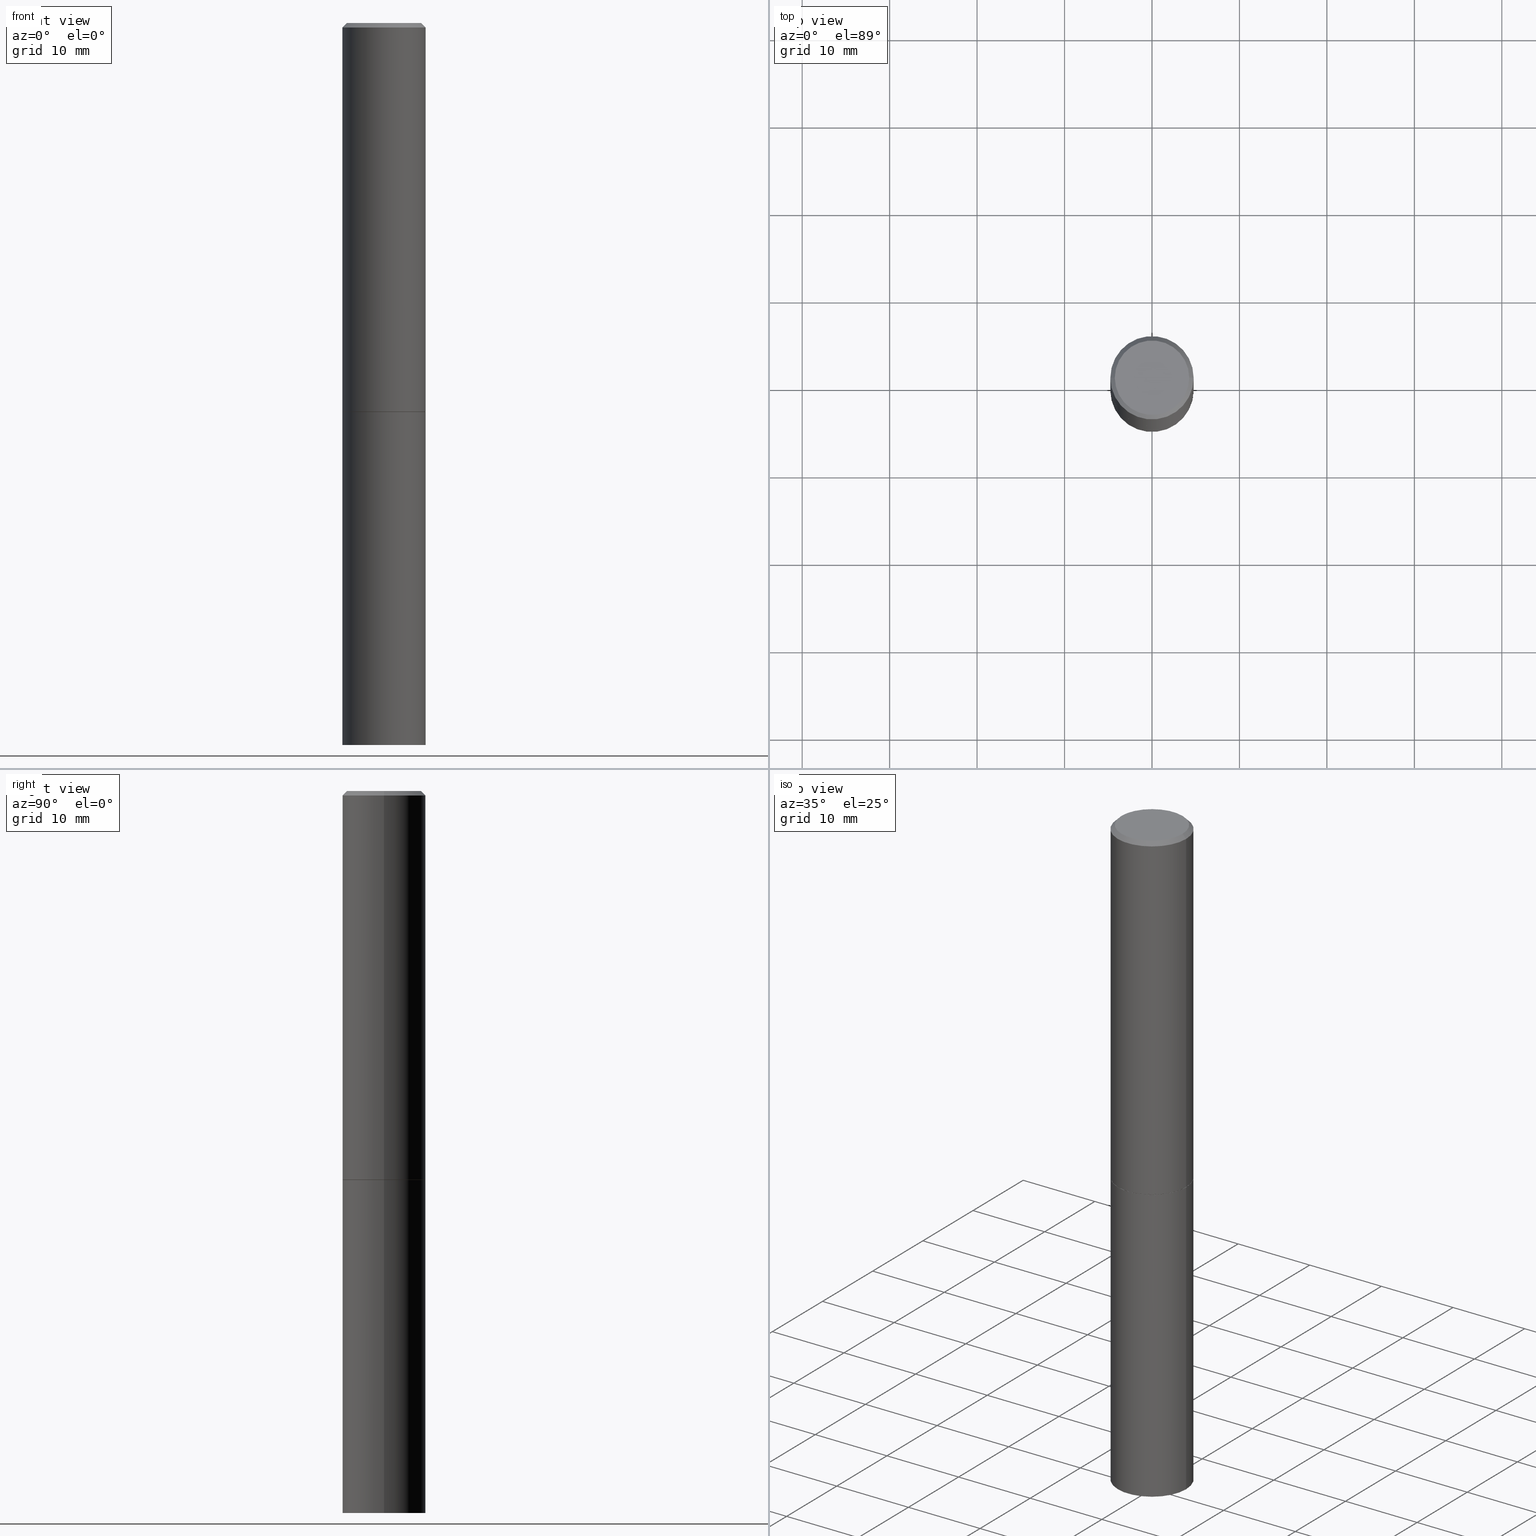
[diagram: canonical four-view strip — front | top / right | iso, engineering-drawing reading convention]
A machine part, canonical four-view strip (front | top / right | iso — engineering-drawing reading convention). The complete STEP part file that produces these views, byte-faithful:
ISO-10303-21;
HEADER;
FILE_DESCRIPTION (( 'STEP AP203' ),
    '1' );
FILE_NAME ('34512.STEP',
    '2024-02-27T16:03:57',
    ( '' ),
    ( '' ),
    'SwSTEP 2.0',
    'SolidWorks 2023',
    '' );
FILE_SCHEMA (( 'CONFIG_CONTROL_DESIGN' ));
ENDSEC;

DATA;
#1 = COORDINATED_UNIVERSAL_TIME_OFFSET ( 5, 0, .BEHIND. ) ;
#2 = CC_DESIGN_APPROVAL ( #336, ( #297 ) ) ;
#3 = FACE_OUTER_BOUND ( 'NONE', #307, .T. ) ;
#4 = ORIENTED_EDGE ( 'NONE', *, *, #358, .F. ) ;
#5 = AXIS2_PLACEMENT_3D ( 'NONE', #283, #23, #165 ) ;
#6 = ORIENTED_EDGE ( 'NONE', *, *, #358, .T. ) ;
#7 = ADVANCED_FACE ( 'NONE', ( #162 ), #346, .T. ) ;
#8 = CIRCLE ( 'NONE', #335, 0.1674999999999998435 ) ;
#9 = CARTESIAN_POINT ( 'NONE',  ( 0.000000000000000000, 0.000000000000000000, 0.000000000000000000 ) ) ;
#10 = DIRECTION ( 'NONE',  ( -2.445468806185136597E-29, 3.491481338843145583E-15, 1.000000000000000000 ) ) ;
#11 = ORIENTED_EDGE ( 'NONE', *, *, #349, .T. ) ;
#12 = CARTESIAN_POINT ( 'NONE',  ( 0.000000000000000000, 0.000000000000000000, 0.000000000000000000 ) ) ;
#13 = AXIS2_PLACEMENT_3D ( 'NONE', #255, #120, #229 ) ;
#14 = DIRECTION ( 'NONE',  ( 1.000000000000000000, -6.982962677686266711E-15, 4.876502603340349702E-29 ) ) ;
#15 = DIRECTION ( 'NONE',  ( 1.000000000000000000, -6.982962677686265922E-15, 4.876176775795935793E-29 ) ) ;
#16 = PRODUCT_DEFINITION ( 'UNKNOWN', '', #297, #222 ) ;
#17 = CONICAL_SURFACE ( 'NONE', #5, 0.1865000000000000546, 0.7853981633975507526 ) ;
#18 = LOCAL_TIME ( 11, 3, 57.00000000000000000, #1 ) ;
#19 = CARTESIAN_POINT ( 'NONE',  ( 4.279570410823988484E-29, -6.110092342975504671E-15, -1.750000000000000000 ) ) ;
#20 = DIRECTION ( 'NONE',  ( -2.445468806185136877E-29, 3.491481338843145188E-15, 1.000000000000000000 ) ) ;
#21 = CC_DESIGN_DATE_AND_TIME_ASSIGNMENT ( #30, #119, ( #25 ) ) ;
#22 = CALENDAR_DATE ( 2024, 27, 2 ) ;
#23 = DIRECTION ( 'NONE',  ( -2.445468806185136597E-29, 3.491481338843145583E-15, 1.000000000000000000 ) ) ;
#24 = PERSON_AND_ORGANIZATION ( #314, #224 ) ;
#25 = SECURITY_CLASSIFICATION ( '', '', #254 ) ;
#26 = CARTESIAN_POINT ( 'NONE',  ( 4.279570410823988484E-29, -6.110092342975504671E-15, -1.750000000000000000 ) ) ;
#27 = PERSON_AND_ORGANIZATION_ROLE ( 'classification_officer' ) ;
#28 = DIRECTION ( 'NONE',  ( -2.445468806185136877E-29, 3.491481338843145188E-15, 1.000000000000000000 ) ) ;
#29 = ORIENTED_EDGE ( 'NONE', *, *, #204, .T. ) ;
#30 = DATE_AND_TIME ( #110, #18 ) ;
#31 = EDGE_LOOP ( 'NONE', ( #29, #258 ) ) ;
#32 = DIRECTION ( 'NONE',  ( 1.000000000000000000, -6.982962677686261189E-15, 0.000000000000000000 ) ) ;
#33 = ORIENTED_EDGE ( 'NONE', *, *, #349, .F. ) ;
#34 = EDGE_LOOP ( 'NONE', ( #352, #106, #330, #219 ) ) ;
#35 = CIRCLE ( 'NONE', #48, 0.1875000000000000555 ) ;
#36 = CIRCLE ( 'NONE', #164, 0.1875000000000000555 ) ;
#37 = PLANE ( 'NONE',  #132 ) ;
#38 = ORIENTED_EDGE ( 'NONE', *, *, #273, .F. ) ;
#39 = ORIENTED_EDGE ( 'NONE', *, *, #253, .F. ) ;
#40 =( NAMED_UNIT ( * ) SI_UNIT ( $, .STERADIAN. ) SOLID_ANGLE_UNIT ( ) );
#41 = DIRECTION ( 'NONE',  ( 2.445468806185136597E-29, -3.491481338843145583E-15, -1.000000000000000000 ) ) ;
#42 = CIRCLE ( 'NONE', #214, 0.1865000000000000546 ) ;
#43 = LINE ( 'NONE', #190, #160 ) ;
#44 = CC_DESIGN_PERSON_AND_ORGANIZATION_ASSIGNMENT ( #24, #249, ( #297 ) ) ;
#45 = DIRECTION ( 'NONE',  ( -0.7071067811865467956, 2.468850131082249172E-15, -0.7071067811865482389 ) ) ;
#46 = MANIFOLD_SOLID_BREP ( 'Body-Move/Copy2[2]', #68 ) ;
#47 =( LENGTH_UNIT ( ) NAMED_UNIT ( * ) SI_UNIT ( $, .METRE. ) );
#48 = AXIS2_PLACEMENT_3D ( 'NONE', #117, #286, #55 ) ;
#49 = CLOSED_SHELL ( 'NONE', ( #198, #248, #122, #7 ) ) ;
#50 = LOCAL_TIME ( 11, 3, 57.00000000000000000, #285 ) ;
#51 = DIRECTION ( 'NONE',  ( 1.000000000000000000, -6.982962677686265922E-15, 0.000000000000000000 ) ) ;
#52 = DIRECTION ( 'NONE',  ( 0.7071067811866199593, -2.468850131083015945E-15, 0.7071067811864750752 ) ) ;
#53 = MANIFOLD_SOLID_BREP ( 'Body-Move/Copy2[1]', #49 ) ;
#54 = DIRECTION ( 'NONE',  ( 1.000000000000000000, 0.000000000000000000, 0.000000000000000000 ) ) ;
#55 = DIRECTION ( 'NONE',  ( 1.000000000000000000, -6.982962677686265922E-15, 0.000000000000000000 ) ) ;
#56 = PERSON_AND_ORGANIZATION ( #314, #224 ) ;
#57 = APPLICATION_CONTEXT ( 'configuration controlled 3d designs of mechanical parts and assemblies' ) ;
#58 = PERSON_AND_ORGANIZATION_ROLE ( 'creator' ) ;
#59 = ADVANCED_FACE ( 'NONE', ( #72 ), #325, .T. ) ;
#60 = DIRECTION ( 'NONE',  ( 1.000000000000000000, -6.982962677686266711E-15, 0.000000000000000000 ) ) ;
#61 = FACE_OUTER_BOUND ( 'NONE', #125, .T. ) ;
#62 = ORIENTED_EDGE ( 'NONE', *, *, #204, .F. ) ;
#63 = DIRECTION ( 'NONE',  ( 1.000000000000000000, -6.982962677686261189E-15, 0.000000000000000000 ) ) ;
#64 = ADVANCED_FACE ( 'NONE', ( #76 ), #207, .T. ) ;
#65 = ADVANCED_FACE ( 'NONE', ( #305 ), #158, .T. ) ;
#66 = AXIS2_PLACEMENT_3D ( 'NONE', #271, #104, #184 ) ;
#67 = DIRECTION ( 'NONE',  ( -1.000000000000000000, 6.982962677686265922E-15, -4.876176775795935793E-29 ) ) ;
#68 = CLOSED_SHELL ( 'NONE', ( #138, #65, #59, #64, #266, #126, #193, #324 ) ) ;
#69 = DIRECTION ( 'NONE',  ( -1.000000000000000000, 6.982962677686265922E-15, -4.876176775795935793E-29 ) ) ;
#70 = CARTESIAN_POINT ( 'NONE',  ( 0.1875000000000000555, -7.419397845041680468E-15, -1.750000000000000222 ) ) ;
#71 = CC_DESIGN_APPROVAL ( #103, ( #25 ) ) ;
#72 = FACE_OUTER_BOUND ( 'NONE', #155, .T. ) ;
#73 = EDGE_CURVE ( 'NONE', #98, #244, #43, .T. ) ;
#74 = ORIENTED_EDGE ( 'NONE', *, *, #152, .F. ) ;
#75 = PRODUCT_RELATED_PRODUCT_CATEGORY ( 'detail', '', ( #269 ) ) ;
#76 = FACE_OUTER_BOUND ( 'NONE', #212, .T. ) ;
#77 = LINE ( 'NONE', #80, #361 ) ;
#78 = ORIENTED_EDGE ( 'NONE', *, *, #156, .F. ) ;
#79 = PERSON_AND_ORGANIZATION_ROLE ( 'design_owner' ) ;
#80 = CARTESIAN_POINT ( 'NONE',  ( 0.1865000000000000546, -7.412414882363992876E-15, -1.750000000000000000 ) ) ;
#81 = DIRECTION ( 'NONE',  ( 1.000000000000000000, -6.982962677686265922E-15, 0.000000000000000000 ) ) ;
#82 = PERSON_AND_ORGANIZATION ( #314, #224 ) ;
#83 = FACE_OUTER_BOUND ( 'NONE', #134, .T. ) ;
#84 = PERSON_AND_ORGANIZATION ( #314, #224 ) ;
#85 = DIRECTION ( 'NONE',  ( 1.000000000000000000, -6.982962677686266711E-15, 4.876502603340349702E-29 ) ) ;
#86 = CC_DESIGN_DATE_AND_TIME_ASSIGNMENT ( #334, #339, ( #16 ) ) ;
#87 = COORDINATED_UNIVERSAL_TIME_OFFSET ( 5, 0, .BEHIND. ) ;
#88 = AXIS2_PLACEMENT_3D ( 'NONE', #364, #360, #85 ) ;
#89 = DIRECTION ( 'NONE',  ( -2.445468806185136597E-29, 3.491481338843145583E-15, 1.000000000000000000 ) ) ;
#90 = ORIENTED_EDGE ( 'NONE', *, *, #133, .T. ) ;
#91 = DATE_AND_TIME ( #114, #188 ) ;
#92 = FACE_OUTER_BOUND ( 'NONE', #268, .T. ) ;
#93 = CC_DESIGN_PERSON_AND_ORGANIZATION_ASSIGNMENT ( #311, #27, ( #25 ) ) ;
#94 = CARTESIAN_POINT ( 'NONE',  ( 1.169646248512448609E-15, 0.1674999999999998435, -5.784203555210757353E-16 ) ) ;
#95 = LOCAL_TIME ( 11, 3, 57.00000000000000000, #116 ) ;
#96 = AXIS2_PLACEMENT_3D ( 'NONE', #99, #351, #186 ) ;
#97 = EDGE_CURVE ( 'NONE', #265, #98, #8, .T. ) ;
#98 = VERTEX_POINT ( 'NONE', #128 ) ;
#99 = CARTESIAN_POINT ( 'NONE',  ( 4.890937612370278413E-31, -6.982962677686297772E-17, -0.02000000000000002123 ) ) ;
#100 = CARTESIAN_POINT ( 'NONE',  ( -0.1875000000000000278, -1.755947614656572858E-15, -1.749000000000000110 ) ) ;
#101 = ORIENTED_EDGE ( 'NONE', *, *, #187, .T. ) ;
#102 = VERTEX_POINT ( 'NONE', #70 ) ;
#103 = APPROVAL ( #282, 'UNSPECIFIED' ) ;
#104 = DIRECTION ( 'NONE',  ( -2.445468806185136597E-29, 3.491481338843145583E-15, 1.000000000000000000 ) ) ;
#105 = VERTEX_POINT ( 'NONE', #161 ) ;
#106 = ORIENTED_EDGE ( 'NONE', *, *, #253, .T. ) ;
#107 = VECTOR ( 'NONE', #240, 39.37007874015748143 ) ;
#108 = LENGTH_MEASURE_WITH_UNIT ( LENGTH_MEASURE( 0.02539999999999999897 ), #47 );
#109 =( CONVERSION_BASED_UNIT ( 'INCH', #108 ) LENGTH_UNIT ( ) NAMED_UNIT ( #281 ) );
#110 = CALENDAR_DATE ( 2024, 27, 2 ) ;
#111 = CARTESIAN_POINT ( 'NONE',  ( -0.1874999999999998335, 1.239475875289310724E-15, -0.02000000000000002123 ) ) ;
#112 = CARTESIAN_POINT ( 'NONE',  ( -0.1875000000000000278, -7.396435717557677094E-15, -3.250000000000000000 ) ) ;
#113 = CARTESIAN_POINT ( 'NONE',  ( -0.1865000000000000546, -4.784930140782917042E-15, -1.750000000000000000 ) ) ;
#114 = CALENDAR_DATE ( 2024, 27, 2 ) ;
#115 = EDGE_CURVE ( 'NONE', #296, #244, #172, .T. ) ;
#116 = COORDINATED_UNIVERSAL_TIME_OFFSET ( 5, 0, .BEHIND. ) ;
#117 = CARTESIAN_POINT ( 'NONE',  ( 4.277124942017804562E-29, -6.106600861636661664E-15, -1.749000000000000110 ) ) ;
#118 = ORIENTED_EDGE ( 'NONE', *, *, #294, .T. ) ;
#119 = DATE_TIME_ROLE ( 'classification_date' ) ;
#120 = DIRECTION ( 'NONE',  ( -2.445468806185136597E-29, 3.491481338843145583E-15, 1.000000000000000000 ) ) ;
#121 = AXIS2_PLACEMENT_3D ( 'NONE', #313, #342, #176 ) ;
#122 = ADVANCED_FACE ( 'NONE', ( #299 ), #213, .F. ) ;
#123 = EDGE_LOOP ( 'NONE', ( #242, #354, #78, #270 ) ) ;
#124 = EDGE_CURVE ( 'NONE', #292, #102, #178, .T. ) ;
#125 = EDGE_LOOP ( 'NONE', ( #74, #90, #245, #39 ) ) ;
#126 = ADVANCED_FACE ( 'NONE', ( #61 ), #247, .T. ) ;
#127 = DIRECTION ( 'NONE',  ( -2.445468806185136597E-29, 3.491481338843145583E-15, 1.000000000000000000 ) ) ;
#128 = CARTESIAN_POINT ( 'NONE',  ( -0.1674999999999998435, 1.204561061900879864E-15, 1.280553747029293077E-17 ) ) ;
#129 = DIRECTION ( 'NONE',  ( -2.445468806185136877E-29, 3.491481338843145188E-15, 1.000000000000000000 ) ) ;
#130 = ORIENTED_EDGE ( 'NONE', *, *, #124, .F. ) ;
#131 = EDGE_LOOP ( 'NONE', ( #118, #215, #275, #217 ) ) ;
#132 = AXIS2_PLACEMENT_3D ( 'NONE', #231, #241, #343 ) ;
#133 = EDGE_CURVE ( 'NONE', #327, #105, #306, .T. ) ;
#134 = EDGE_LOOP ( 'NONE', ( #154, #38 ) ) ;
#135 = DIRECTION ( 'NONE',  ( -2.445468806185136597E-29, 3.491481338843145583E-15, 1.000000000000000000 ) ) ;
#136 = EDGE_CURVE ( 'NONE', #233, #296, #36, .T. ) ;
#137 = CIRCLE ( 'NONE', #88, 0.1674999999999998435 ) ;
#138 = ADVANCED_FACE ( 'NONE', ( #167 ), #17, .T. ) ;
#139 = APPROVAL_ROLE ( '' ) ;
#140 = CARTESIAN_POINT ( 'NONE',  ( 0.000000000000000000, 0.000000000000000000, 0.000000000000000000 ) ) ;
#141 = CC_DESIGN_PERSON_AND_ORGANIZATION_ASSIGNMENT ( #56, #58, ( #16 ) ) ;
#142 = AXIS2_PLACEMENT_3D ( 'NONE', #94, #321, #69 ) ;
#143 = MECHANICAL_CONTEXT ( 'NONE', #57, 'mechanical' ) ;
#144 = PERSON_AND_ORGANIZATION_ROLE ( 'design_supplier' ) ;
#145 = CYLINDRICAL_SURFACE ( 'NONE', #13, 0.1874999999999999445 ) ;
#146 = ORIENTED_EDGE ( 'NONE', *, *, #187, .F. ) ;
#147 = CARTESIAN_POINT ( 'NONE',  ( 7.947773620101693940E-29, -1.134731435124022443E-14, -3.250000000000000000 ) ) ;
#148 = AXIS2_PLACEMENT_3D ( 'NONE', #328, #174, #60 ) ;
#149 = ORIENTED_EDGE ( 'NONE', *, *, #133, .F. ) ;
#150 = ORIENTED_EDGE ( 'NONE', *, *, #73, .F. ) ;
#151 = ORIENTED_EDGE ( 'NONE', *, *, #273, .T. ) ;
#152 = EDGE_CURVE ( 'NONE', #327, #296, #250, .T. ) ;
#153 = CIRCLE ( 'NONE', #148, 0.1874999999999998335 ) ;
#154 = ORIENTED_EDGE ( 'NONE', *, *, #284, .F. ) ;
#155 = EDGE_LOOP ( 'NONE', ( #298, #6, #185, #150 ) ) ;
#156 = EDGE_CURVE ( 'NONE', #239, #244, #177, .T. ) ;
#157 = CARTESIAN_POINT ( 'NONE',  ( 0.000000000000000000, 0.000000000000000000, 0.000000000000000000 ) ) ;
#158 = CYLINDRICAL_SURFACE ( 'NONE', #331, 0.1874999999999999445 ) ;
#159 = VECTOR ( 'NONE', #129, 39.37007874015748143 ) ;
#160 = VECTOR ( 'NONE', #45, 39.37007874015748143 ) ;
#161 = CARTESIAN_POINT ( 'NONE',  ( 0.1865000000000000546, -7.412414882363992876E-15, -1.750000000000000000 ) ) ;
#162 = FACE_OUTER_BOUND ( 'NONE', #181, .T. ) ;
#163 =( NAMED_UNIT ( * ) PLANE_ANGLE_UNIT ( ) SI_UNIT ( $, .RADIAN. ) );
#164 = AXIS2_PLACEMENT_3D ( 'NONE', #332, #310, #51 ) ;
#165 = DIRECTION ( 'NONE',  ( 1.000000000000000000, -6.982962677686265922E-15, 0.000000000000000000 ) ) ;
#166 = CC_DESIGN_PERSON_AND_ORGANIZATION_ASSIGNMENT ( #84, #79, ( #269 ) ) ;
#167 = FACE_OUTER_BOUND ( 'NONE', #131, .T. ) ;
#168 = APPROVAL_STATUS ( 'not_yet_approved' ) ;
#169 = CARTESIAN_POINT ( 'NONE',  ( 0.1674999999999998435, -1.252653207992877302E-15, 1.280553747030970331E-17 ) ) ;
#170 = CALENDAR_DATE ( 2024, 27, 2 ) ;
#171 = DIRECTION ( 'NONE',  ( 2.438088387897960049E-29, -3.491481338843145188E-15, -1.000000000000000000 ) ) ;
#172 = LINE ( 'NONE', #320, #107 ) ;
#173 = APPROVAL_STATUS ( 'not_yet_approved' ) ;
#174 = DIRECTION ( 'NONE',  ( -2.445468806185136597E-29, 3.491481338843145583E-15, 1.000000000000000000 ) ) ;
#175 = CARTESIAN_POINT ( 'NONE',  ( 0.1874999999999999445, -1.309305502066174614E-15, 9.142831454617376809E-30 ) ) ;
#176 = DIRECTION ( 'NONE',  ( 1.000000000000000000, -6.982962677686265922E-15, 0.000000000000000000 ) ) ;
#177 = CIRCLE ( 'NONE', #66, 0.1874999999999998335 ) ;
#178 = CIRCLE ( 'NONE', #276, 0.1875000000000000555 ) ;
#179 = APPROVAL ( #168, 'UNSPECIFIED' ) ;
#180 = APPROVAL_PERSON_ORGANIZATION ( #359, #103, #251 ) ;
#181 = EDGE_LOOP ( 'NONE', ( #146, #151, #11, #130 ) ) ;
#182 = VECTOR ( 'NONE', #257, 39.37007874015748143 ) ;
#183 = DIRECTION ( 'NONE',  ( -2.445468806185136597E-29, 3.491481338843145583E-15, 1.000000000000000000 ) ) ;
#184 = DIRECTION ( 'NONE',  ( 1.000000000000000000, -6.982962677686266711E-15, 0.000000000000000000 ) ) ;
#185 = ORIENTED_EDGE ( 'NONE', *, *, #156, .T. ) ;
#186 = DIRECTION ( 'NONE',  ( -1.000000000000000000, 6.982962677686266711E-15, 0.000000000000000000 ) ) ;
#187 = EDGE_CURVE ( 'NONE', #201, #292, #216, .T. ) ;
#188 = LOCAL_TIME ( 11, 3, 57.00000000000000000, #87 ) ;
#189 = CARTESIAN_POINT ( 'NONE',  ( 0.1875000000000000555, -1.309305502066175205E-15, 9.142831454617382414E-30 ) ) ;
#190 = CARTESIAN_POINT ( 'NONE',  ( -0.1874999999999998335, 1.239475875289310724E-15, -0.02000000000000002123 ) ) ;
#191 = APPLICATION_PROTOCOL_DEFINITION ( 'international standard', 'config_control_design', 1994, #57 ) ;
#192 = AXIS2_PLACEMENT_3D ( 'NONE', #9, #127, #347 ) ;
#193 = ADVANCED_FACE ( 'NONE', ( #3 ), #37, .F. ) ;
#194 = PERSON_AND_ORGANIZATION ( #314, #224 ) ;
#195 = CARTESIAN_POINT ( 'NONE',  ( 0.1874999999999998335, -1.356173001359024283E-15, -0.02000000000000002123 ) ) ;
#196 = DIRECTION ( 'NONE',  ( 1.000000000000000000, -6.982962677686265922E-15, 0.000000000000000000 ) ) ;
#197 = APPROVAL_DATE_TIME ( #226, #179 ) ;
#198 = ADVANCED_FACE ( 'NONE', ( #92 ), #267, .T. ) ;
#199 = CARTESIAN_POINT ( 'NONE',  ( 0.1875000000000000555, -7.415906363702837461E-15, -1.749000000000000110 ) ) ;
#200 = CIRCLE ( 'NONE', #260, 0.1875000000000000278 ) ;
#201 = VERTEX_POINT ( 'NONE', #112 ) ;
#202 = DIRECTION ( 'NONE',  ( 0.000000000000000000, 0.000000000000000000, 1.000000000000000000 ) ) ;
#203 = DIRECTION ( 'NONE',  ( -2.445468806185136597E-29, 3.491481338843145583E-15, 1.000000000000000000 ) ) ;
#204 = EDGE_CURVE ( 'NONE', #102, #292, #355, .T. ) ;
#205 = VECTOR ( 'NONE', #303, 39.37007874015748143 ) ;
#206 = EDGE_CURVE ( 'NONE', #105, #233, #77, .T. ) ;
#207 = CONICAL_SURFACE ( 'NONE', #261, 0.1874999999999998335, 0.7853981633974472798 ) ;
#208 = DIRECTION ( 'NONE',  ( -2.445468806185136597E-29, 3.491481338843145583E-15, 1.000000000000000000 ) ) ;
#209 = PLANE ( 'NONE',  #142 ) ;
#210 = CARTESIAN_POINT ( 'NONE',  ( -0.1875000000000000555, 1.332267629550188243E-15, -9.223003294227950793E-30 ) ) ;
#211 = ORIENTED_EDGE ( 'NONE', *, *, #73, .T. ) ;
#212 = EDGE_LOOP ( 'NONE', ( #4, #326, #211, #277 ) ) ;
#213 = PLANE ( 'NONE',  #356 ) ;
#214 = AXIS2_PLACEMENT_3D ( 'NONE', #316, #208, #295 ) ;
#215 = ORIENTED_EDGE ( 'NONE', *, *, #152, .T. ) ;
#216 = LINE ( 'NONE', #210, #159 ) ;
#217 = ORIENTED_EDGE ( 'NONE', *, *, #206, .F. ) ;
#218 = EDGE_CURVE ( 'NONE', #244, #239, #153, .T. ) ;
#219 = ORIENTED_EDGE ( 'NONE', *, *, #218, .F. ) ;
#220 = ADVANCED_BREP_SHAPE_REPRESENTATION ( '34512', ( #53, #46, #350 ), #309 ) ;
#221 = DIRECTION ( 'NONE',  ( -2.445468806185136597E-29, 3.491481338843145583E-15, 1.000000000000000000 ) ) ;
#222 = DESIGN_CONTEXT ( 'detailed design', #289, 'design' ) ;
#223 = PERSON_AND_ORGANIZATION ( #314, #224 ) ;
#224 = ORGANIZATION ( 'UNSPECIFIED', 'UNSPECIFIED', '' ) ;
#225 = APPLICATION_PROTOCOL_DEFINITION ( 'international standard', 'config_control_design', 1994, #289 ) ;
#226 = DATE_AND_TIME ( #22, #95 ) ;
#227 = FACE_OUTER_BOUND ( 'NONE', #34, .T. ) ;
#228 = CALENDAR_DATE ( 2024, 27, 2 ) ;
#229 = DIRECTION ( 'NONE',  ( 1.000000000000000000, -6.982962677686266711E-15, 4.876176775795935793E-29 ) ) ;
#230 = LOCAL_TIME ( 11, 3, 57.00000000000000000, #252 ) ;
#231 = CARTESIAN_POINT ( 'NONE',  ( 4.279570410823989044E-29, -6.110092342975505460E-15, -1.750000000000000222 ) ) ;
#232 = EDGE_CURVE ( 'NONE', #98, #265, #137, .T. ) ;
#233 = VERTEX_POINT ( 'NONE', #199 ) ;
#234 = CARTESIAN_POINT ( 'NONE',  ( 1.309305502066218001E-15, 0.1874999999999939493, -1.750000000000000666 ) ) ;
#235 = FACE_OUTER_BOUND ( 'NONE', #345, .T. ) ;
#236 = AXIS2_PLACEMENT_3D ( 'NONE', #312, #171, #288 ) ;
#237 = AXIS2_PLACEMENT_3D ( 'NONE', #12, #183, #15 ) ;
#238 = ORIENTED_EDGE ( 'NONE', *, *, #97, .T. ) ;
#239 = VERTEX_POINT ( 'NONE', #195 ) ;
#240 = DIRECTION ( 'NONE',  ( -2.445468806185136877E-29, 3.491481338843145188E-15, 1.000000000000000000 ) ) ;
#241 = DIRECTION ( 'NONE',  ( -2.438088387897960049E-29, 3.491481338843145188E-15, 1.000000000000000000 ) ) ;
#242 = ORIENTED_EDGE ( 'NONE', *, *, #136, .T. ) ;
#243 = VERTEX_POINT ( 'NONE', #366 ) ;
#244 = VERTEX_POINT ( 'NONE', #111 ) ;
#245 = ORIENTED_EDGE ( 'NONE', *, *, #206, .T. ) ;
#246 = APPROVAL_PERSON_ORGANIZATION ( #82, #179, #139 ) ;
#247 = CONICAL_SURFACE ( 'NONE', #340, 0.1865000000000000546, 0.7853981633975507526 ) ;
#248 = ADVANCED_FACE ( 'NONE', ( #83 ), #291, .T. ) ;
#249 = PERSON_AND_ORGANIZATION_ROLE ( 'creator' ) ;
#250 = LINE ( 'NONE', #113, #182 ) ;
#251 = APPROVAL_ROLE ( '' ) ;
#252 = COORDINATED_UNIVERSAL_TIME_OFFSET ( 5, 0, .BEHIND. ) ;
#253 = EDGE_CURVE ( 'NONE', #296, #233, #35, .T. ) ;
#254 = SECURITY_CLASSIFICATION_LEVEL ( 'unclassified' ) ;
#255 = CARTESIAN_POINT ( 'NONE',  ( 0.000000000000000000, 0.000000000000000000, 0.000000000000000000 ) ) ;
#256 = EDGE_CURVE ( 'NONE', #233, #239, #293, .T. ) ;
#257 = DIRECTION ( 'NONE',  ( -0.7071067811866199593, 7.493145998870616062E-15, 0.7071067811864750752 ) ) ;
#258 = ORIENTED_EDGE ( 'NONE', *, *, #124, .T. ) ;
#259 = DIRECTION ( 'NONE',  ( -2.445468806185136597E-29, 3.491481338843145583E-15, 1.000000000000000000 ) ) ;
#260 = AXIS2_PLACEMENT_3D ( 'NONE', #341, #203, #63 ) ;
#261 = AXIS2_PLACEMENT_3D ( 'NONE', #302, #41, #300 ) ;
#262 = ORIENTED_EDGE ( 'NONE', *, *, #294, .F. ) ;
#263 = CARTESIAN_POINT ( 'NONE',  ( -0.1875000000000000555, -7.396435717557675516E-15, -1.750000000000000222 ) ) ;
#264 = PRODUCT_DEFINITION_SHAPE ( 'NONE', 'NONE',  #16 ) ;
#265 = VERTEX_POINT ( 'NONE', #169 ) ;
#266 = ADVANCED_FACE ( 'NONE', ( #227 ), #145, .T. ) ;
#267 = CYLINDRICAL_SURFACE ( 'NONE', #192, 0.1875000000000000555 ) ;
#268 = EDGE_LOOP ( 'NONE', ( #329, #101, #62, #33 ) ) ;
#269 = PRODUCT ( '34512', '34512', '', ( #143 ) ) ;
#270 = ORIENTED_EDGE ( 'NONE', *, *, #256, .F. ) ;
#271 = CARTESIAN_POINT ( 'NONE',  ( 4.890937612370278413E-31, -6.982962677686297772E-17, -0.02000000000000002123 ) ) ;
#272 = CARTESIAN_POINT ( 'NONE',  ( -3.131554243005659264E-46, 4.471029511141341874E-32, 1.280553747030123384E-17 ) ) ;
#273 = EDGE_CURVE ( 'NONE', #201, #243, #200, .T. ) ;
#274 = CIRCLE ( 'NONE', #338, 0.1875000000000000278 ) ;
#275 = ORIENTED_EDGE ( 'NONE', *, *, #136, .F. ) ;
#276 = AXIS2_PLACEMENT_3D ( 'NONE', #365, #89, #362 ) ;
#277 = ORIENTED_EDGE ( 'NONE', *, *, #218, .T. ) ;
#278 = LINE ( 'NONE', #308, #205 ) ;
#279 = CC_DESIGN_SECURITY_CLASSIFICATION ( #25, ( #297 ) ) ;
#280 = UNCERTAINTY_MEASURE_WITH_UNIT (LENGTH_MEASURE( 1.000000000000000082E-05 ), #109, 'distance_accuracy_value', 'NONE');
#281 = DIMENSIONAL_EXPONENTS ( 1.000000000000000000, 0.000000000000000000, 0.000000000000000000, 0.000000000000000000, 0.000000000000000000, 0.000000000000000000, 0.000000000000000000 ) ;
#282 = APPROVAL_STATUS ( 'not_yet_approved' ) ;
#283 = CARTESIAN_POINT ( 'NONE',  ( 4.279570410823988484E-29, -6.110092342975504671E-15, -1.750000000000000000 ) ) ;
#284 = EDGE_CURVE ( 'NONE', #243, #201, #274, .T. ) ;
#285 = COORDINATED_UNIVERSAL_TIME_OFFSET ( 5, 0, .BEHIND. ) ;
#286 = DIRECTION ( 'NONE',  ( -2.445468806185136597E-29, 3.491481338843145583E-15, 1.000000000000000000 ) ) ;
#287 = APPROVAL_ROLE ( '' ) ;
#288 = DIRECTION ( 'NONE',  ( -1.000000000000000000, 6.982962677686265922E-15, -4.876176775795935793E-29 ) ) ;
#289 = APPLICATION_CONTEXT ( 'configuration controlled 3d designs of mechanical parts and assemblies' ) ;
#290 = APPROVAL_DATE_TIME ( #91, #336 ) ;
#291 = PLANE ( 'NONE',  #236 ) ;
#292 = VERTEX_POINT ( 'NONE', #263 ) ;
#293 = LINE ( 'NONE', #175, #333 ) ;
#294 = EDGE_CURVE ( 'NONE', #105, #327, #42, .T. ) ;
#295 = DIRECTION ( 'NONE',  ( 1.000000000000000000, -6.982962677686265922E-15, 0.000000000000000000 ) ) ;
#296 = VERTEX_POINT ( 'NONE', #100 ) ;
#297 = PRODUCT_DEFINITION_FORMATION_WITH_SPECIFIED_SOURCE ( 'ANY', '', #269, .NOT_KNOWN. ) ;
#298 = ORIENTED_EDGE ( 'NONE', *, *, #97, .F. ) ;
#299 = FACE_OUTER_BOUND ( 'NONE', #31, .T. ) ;
#300 = DIRECTION ( 'NONE',  ( -1.000000000000000000, 6.982962677686266711E-15, 0.000000000000000000 ) ) ;
#301 = DIRECTION ( 'NONE',  ( 2.438088387897960049E-29, -3.491481338843145188E-15, -1.000000000000000000 ) ) ;
#302 = CARTESIAN_POINT ( 'NONE',  ( 4.890937612370278413E-31, -6.982962677686297772E-17, -0.02000000000000002123 ) ) ;
#303 = DIRECTION ( 'NONE',  ( 0.7071067811865467956, -7.319954787623254468E-15, -0.7071067811865482389 ) ) ;
#304 = CC_DESIGN_APPROVAL ( #179, ( #16 ) ) ;
#305 = FACE_OUTER_BOUND ( 'NONE', #123, .T. ) ;
#306 = CIRCLE ( 'NONE', #318, 0.1865000000000000546 ) ;
#307 = EDGE_LOOP ( 'NONE', ( #262, #149 ) ) ;
#308 = CARTESIAN_POINT ( 'NONE',  ( 0.1874999999999998335, -1.356173001359024283E-15, -0.02000000000000002123 ) ) ;
#309 =( GEOMETRIC_REPRESENTATION_CONTEXT ( 3 ) GLOBAL_UNCERTAINTY_ASSIGNED_CONTEXT ( ( #280 ) ) GLOBAL_UNIT_ASSIGNED_CONTEXT ( ( #109, #163, #40 ) ) REPRESENTATION_CONTEXT ( 'NONE', 'WORKASPACE' ) );
#310 = DIRECTION ( 'NONE',  ( -2.445468806185136597E-29, 3.491481338843145583E-15, 1.000000000000000000 ) ) ;
#311 = PERSON_AND_ORGANIZATION ( #314, #224 ) ;
#312 = CARTESIAN_POINT ( 'NONE',  ( 1.309305502066254683E-15, 0.1874999999999886757, -3.250000000000000444 ) ) ;
#313 = CARTESIAN_POINT ( 'NONE',  ( 4.279570410823989044E-29, -6.110092342975505460E-15, -1.750000000000000222 ) ) ;
#314 = PERSON ( 'UNSPECIFIED', 'UNSPECIFIED', 'UNSPECIFIED', ('UNSPECIFIED'), ('UNSPECIFIED'), ('UNSPECIFIED') ) ;
#315 = SHAPE_DEFINITION_REPRESENTATION ( #264, #220 ) ;
#316 = CARTESIAN_POINT ( 'NONE',  ( 4.279570410823988484E-29, -6.110092342975504671E-15, -1.750000000000000000 ) ) ;
#317 = VECTOR ( 'NONE', #20, 39.37007874015748143 ) ;
#318 = AXIS2_PLACEMENT_3D ( 'NONE', #26, #221, #196 ) ;
#319 = CC_DESIGN_PERSON_AND_ORGANIZATION_ASSIGNMENT ( #223, #144, ( #297 ) ) ;
#320 = CARTESIAN_POINT ( 'NONE',  ( -0.1874999999999999445, 1.332267629550187454E-15, -9.223003294227945188E-30 ) ) ;
#321 = DIRECTION ( 'NONE',  ( 2.438088387897960049E-29, -3.491481338843145188E-15, -1.000000000000000000 ) ) ;
#322 = DIRECTION ( 'NONE',  ( 1.000000000000000000, -6.982962677686266711E-15, 4.876176775795935793E-29 ) ) ;
#323 = CARTESIAN_POINT ( 'NONE',  ( -0.1865000000000000546, -4.779631686434696217E-15, -1.750000000000000000 ) ) ;
#324 = ADVANCED_FACE ( 'NONE', ( #235 ), #209, .F. ) ;
#325 = CONICAL_SURFACE ( 'NONE', #96, 0.1874999999999998335, 0.7853981633974472798 ) ;
#326 = ORIENTED_EDGE ( 'NONE', *, *, #232, .F. ) ;
#327 = VERTEX_POINT ( 'NONE', #323 ) ;
#328 = CARTESIAN_POINT ( 'NONE',  ( 4.890937612370278413E-31, -6.982962677686297772E-17, -0.02000000000000002123 ) ) ;
#329 = ORIENTED_EDGE ( 'NONE', *, *, #284, .T. ) ;
#330 = ORIENTED_EDGE ( 'NONE', *, *, #256, .T. ) ;
#331 = AXIS2_PLACEMENT_3D ( 'NONE', #157, #135, #322 ) ;
#332 = CARTESIAN_POINT ( 'NONE',  ( 4.277124942017804562E-29, -6.106600861636661664E-15, -1.749000000000000110 ) ) ;
#333 = VECTOR ( 'NONE', #28, 39.37007874015748143 ) ;
#334 = DATE_AND_TIME ( #170, #50 ) ;
#335 = AXIS2_PLACEMENT_3D ( 'NONE', #272, #10, #14 ) ;
#336 = APPROVAL ( #173, 'UNSPECIFIED' ) ;
#337 = APPROVAL_DATE_TIME ( #363, #103 ) ;
#338 = AXIS2_PLACEMENT_3D ( 'NONE', #147, #259, #32 ) ;
#339 = DATE_TIME_ROLE ( 'creation_date' ) ;
#340 = AXIS2_PLACEMENT_3D ( 'NONE', #19, #357, #81 ) ;
#341 = CARTESIAN_POINT ( 'NONE',  ( 7.947773620101693940E-29, -1.134731435124022443E-14, -3.250000000000000000 ) ) ;
#342 = DIRECTION ( 'NONE',  ( -2.445468806185136597E-29, 3.491481338843145583E-15, 1.000000000000000000 ) ) ;
#343 = DIRECTION ( 'NONE',  ( 1.000000000000000000, -6.982962677686265922E-15, 4.876176775795935793E-29 ) ) ;
#344 = APPROVAL_PERSON_ORGANIZATION ( #194, #336, #287 ) ;
#345 = EDGE_LOOP ( 'NONE', ( #348, #238 ) ) ;
#346 = CYLINDRICAL_SURFACE ( 'NONE', #237, 0.1875000000000000555 ) ;
#347 = DIRECTION ( 'NONE',  ( 1.000000000000000000, -6.982962677686265922E-15, 4.876176775795935793E-29 ) ) ;
#348 = ORIENTED_EDGE ( 'NONE', *, *, #232, .T. ) ;
#349 = EDGE_CURVE ( 'NONE', #243, #102, #353, .T. ) ;
#350 = AXIS2_PLACEMENT_3D ( 'NONE', #140, #202, #54 ) ;
#351 = DIRECTION ( 'NONE',  ( 2.445468806185136597E-29, -3.491481338843145583E-15, -1.000000000000000000 ) ) ;
#352 = ORIENTED_EDGE ( 'NONE', *, *, #115, .F. ) ;
#353 = LINE ( 'NONE', #189, #317 ) ;
#354 = ORIENTED_EDGE ( 'NONE', *, *, #115, .T. ) ;
#355 = CIRCLE ( 'NONE', #121, 0.1875000000000000555 ) ;
#356 = AXIS2_PLACEMENT_3D ( 'NONE', #234, #301, #67 ) ;
#357 = DIRECTION ( 'NONE',  ( -2.445468806185136597E-29, 3.491481338843145583E-15, 1.000000000000000000 ) ) ;
#358 = EDGE_CURVE ( 'NONE', #265, #239, #278, .T. ) ;
#359 = PERSON_AND_ORGANIZATION ( #314, #224 ) ;
#360 = DIRECTION ( 'NONE',  ( -2.445468806185136597E-29, 3.491481338843145583E-15, 1.000000000000000000 ) ) ;
#361 = VECTOR ( 'NONE', #52, 39.37007874015748143 ) ;
#362 = DIRECTION ( 'NONE',  ( 1.000000000000000000, -6.982962677686265922E-15, 0.000000000000000000 ) ) ;
#363 = DATE_AND_TIME ( #228, #230 ) ;
#364 = CARTESIAN_POINT ( 'NONE',  ( -3.131554243005659264E-46, 4.471029511141341874E-32, 1.280553747030123384E-17 ) ) ;
#365 = CARTESIAN_POINT ( 'NONE',  ( 4.279570410823989044E-29, -6.110092342975505460E-15, -1.750000000000000222 ) ) ;
#366 = CARTESIAN_POINT ( 'NONE',  ( 0.1875000000000000278, -1.265661985330639786E-14, -3.250000000000000000 ) ) ;
ENDSEC;
END-ISO-10303-21;
